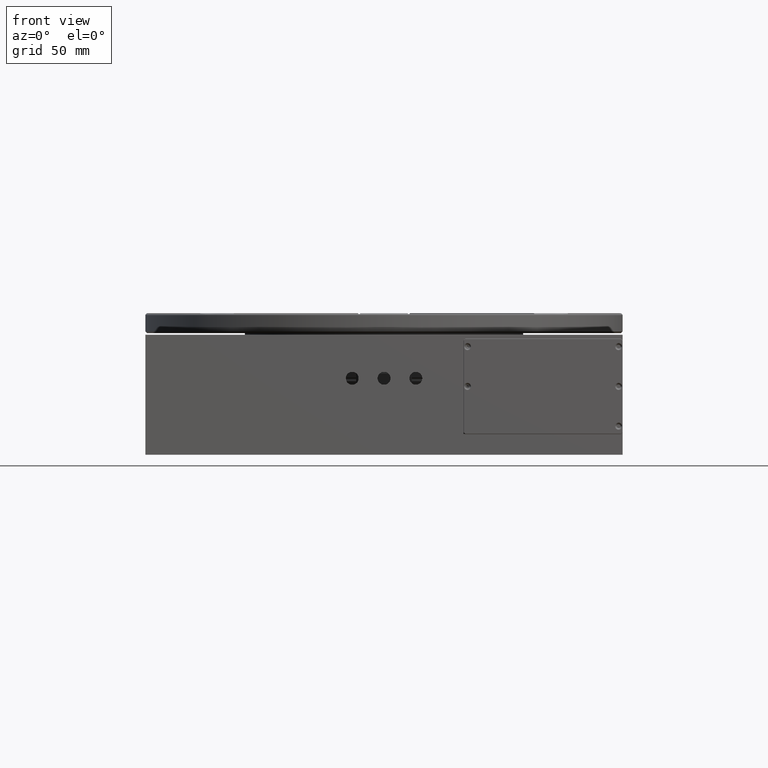
[diagram: clean part render]
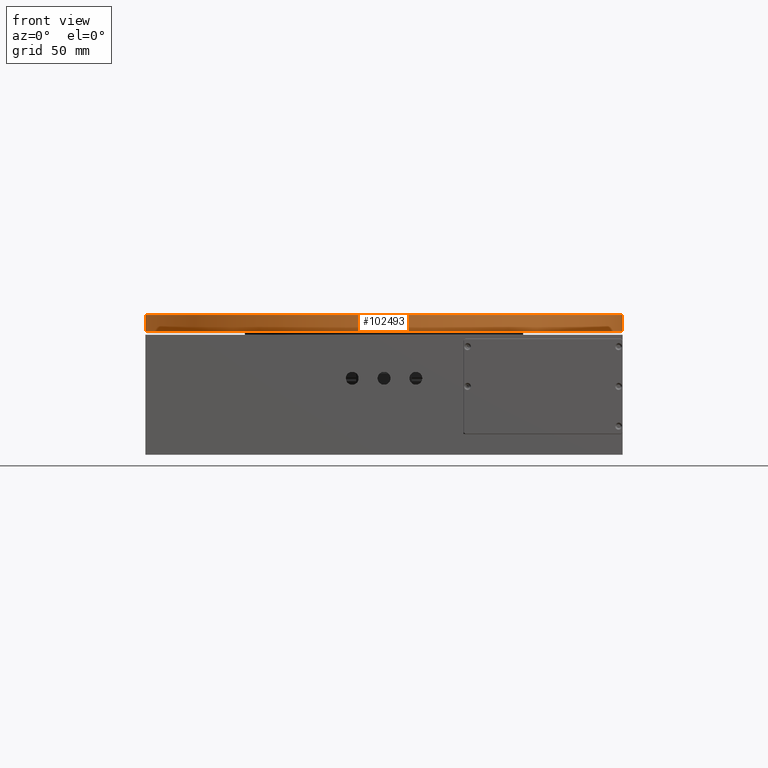
[diagram: same view with one face highlighted and labeled with its STEP entity id]
A machine part, front view. The second image highlights one B-rep face of the part: STEP entity #102493.
In plain terms, the highlighted cylindrical surface (partial cylindrical patch) has radius 150 mm, axis along (0, 0, -1).
Its self-contained STEP definition (entity closure, byte-faithful):
#5136 = CIRCLE ( 'NONE', #14313, 150.0000000000000000 ) ;
#6022 = DIRECTION ( 'NONE',  ( 1.000000000000000000, 0.000000000000000000, 0.000000000000000000 ) ) ;
#14313 = AXIS2_PLACEMENT_3D ( 'NONE', #116372, #173879, #6022 ) ;
#18563 = CARTESIAN_POINT ( 'NONE',  ( 72.00183859329590064, 23.85578295678970306, 380.5000000000000000 ) ) ;
#23790 = VERTEX_POINT ( 'NONE', #18563 ) ;
#29270 = DIRECTION ( 'NONE',  ( -1.000000000000000000, 0.000000000000000000, 0.000000000000000000 ) ) ;
#35567 = EDGE_CURVE ( 'NONE', #23790, #37064, #104935, .T. ) ;
#37064 = VERTEX_POINT ( 'NONE', #132937 ) ;
#39992 = DIRECTION ( 'NONE',  ( 1.000000000000000000, 0.000000000000000000, 0.000000000000000000 ) ) ;
#43393 = CARTESIAN_POINT ( 'NONE',  ( -77.99816140670421305, 23.85578295678970306, 381.5000000000000000 ) ) ;
#59740 = ORIENTED_EDGE ( 'NONE', *, *, #123975, .T. ) ;
#62007 = EDGE_CURVE ( 'NONE', #95651, #37064, #168666, .T. ) ;
#66435 = CARTESIAN_POINT ( 'NONE',  ( -77.99816140670421305, 23.85578295678970306, 370.0000000000000000 ) ) ;
#71108 = CARTESIAN_POINT ( 'NONE',  ( -227.9981614067044973, 23.85578295678970306, 370.0000000000000000 ) ) ;
#87257 = EDGE_CURVE ( 'NONE', #185249, #95651, #160551, .T. ) ;
#87280 = AXIS2_PLACEMENT_3D ( 'NONE', #43393, #158391, #29270 ) ;
#92104 = ORIENTED_EDGE ( 'NONE', *, *, #87257, .T. ) ;
#95651 = VERTEX_POINT ( 'NONE', #71108 ) ;
#102493 = ADVANCED_FACE ( 'NONE', ( #185760 ), #114100, .T. ) ;
#104935 = LINE ( 'NONE', #135993, #176902 ) ;
#106773 = CARTESIAN_POINT ( 'NONE',  ( -227.9981614067044973, 23.85578295678970306, 381.5000000000000000 ) ) ;
#111279 = EDGE_LOOP ( 'NONE', ( #137403, #59740, #92104, #130181 ) ) ;
#114100 = CYLINDRICAL_SURFACE ( 'NONE', #87280, 150.0000000000000000 ) ;
#116372 = CARTESIAN_POINT ( 'NONE',  ( -77.99816140670421305, 23.85578295678970306, 380.5000000000000000 ) ) ;
#121860 = DIRECTION ( 'NONE',  ( 0.000000000000000000, 0.000000000000000000, -1.000000000000000000 ) ) ;
#123975 = EDGE_CURVE ( 'NONE', #23790, #185249, #5136, .T. ) ;
#130181 = ORIENTED_EDGE ( 'NONE', *, *, #62007, .T. ) ;
#132937 = CARTESIAN_POINT ( 'NONE',  ( 72.00183859329590064, 23.85578295678970306, 370.0000000000000000 ) ) ;
#135993 = CARTESIAN_POINT ( 'NONE',  ( 72.00183859329590064, 23.85578295678970306, 381.5000000000000000 ) ) ;
#137338 = VECTOR ( 'NONE', #161487, 1000.000000000000000 ) ;
#137403 = ORIENTED_EDGE ( 'NONE', *, *, #35567, .F. ) ;
#158391 = DIRECTION ( 'NONE',  ( 0.000000000000000000, 0.000000000000000000, -1.000000000000000000 ) ) ;
#160551 = LINE ( 'NONE', #106773, #137338 ) ;
#161487 = DIRECTION ( 'NONE',  ( 0.000000000000000000, 0.000000000000000000, -1.000000000000000000 ) ) ;
#163255 = CARTESIAN_POINT ( 'NONE',  ( -227.9981614067044973, 23.85578295678970306, 380.5000000000000000 ) ) ;
#167246 = DIRECTION ( 'NONE',  ( 0.000000000000000000, 0.000000000000000000, 1.000000000000000000 ) ) ;
#168666 = CIRCLE ( 'NONE', #174616, 150.0000000000000000 ) ;
#173879 = DIRECTION ( 'NONE',  ( 0.000000000000000000, 0.000000000000000000, -1.000000000000000000 ) ) ;
#174616 = AXIS2_PLACEMENT_3D ( 'NONE', #66435, #167246, #39992 ) ;
#176902 = VECTOR ( 'NONE', #121860, 1000.000000000000000 ) ;
#185249 = VERTEX_POINT ( 'NONE', #163255 ) ;
#185760 = FACE_OUTER_BOUND ( 'NONE', #111279, .T. ) ;